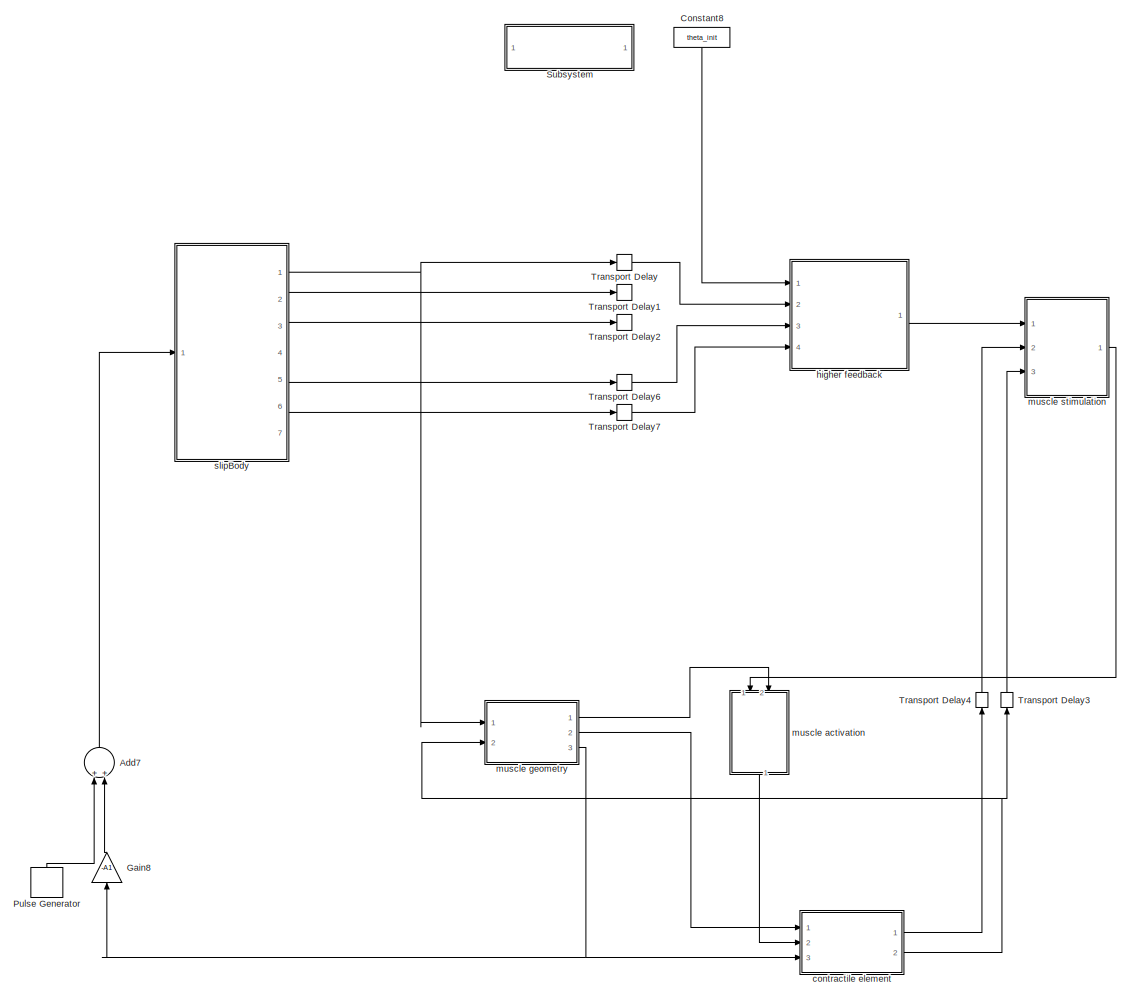
[diagram: root canvas - part 1/1, most of the canvas]
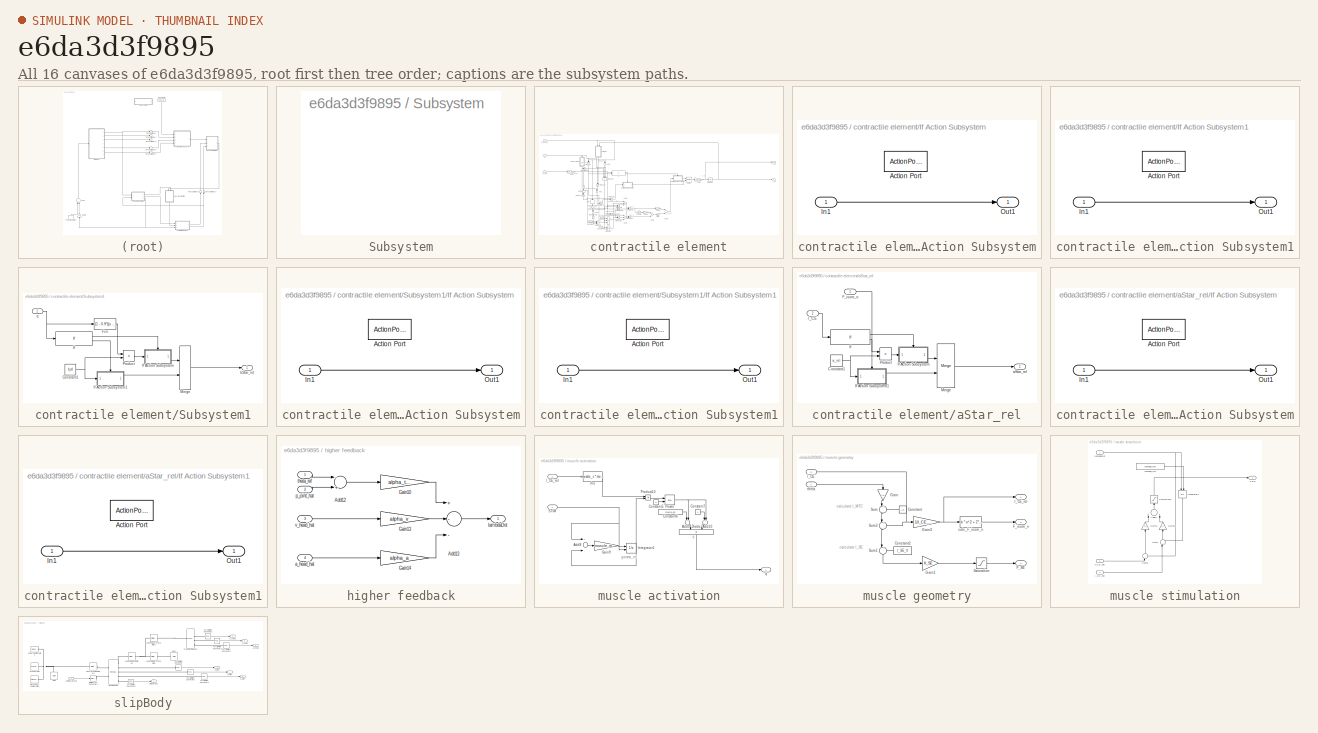
[diagram: thumbnail index - all 16 canvases of the model, root first then tree order]
MODEL slx_e6da3d3f9895
KIND model
CONFIG AbsTol = auto
CONFIG EnableMultiTasking = on
CONFIG FixedStep = auto
CONFIG MaxStep = 0.001
CONFIG MinStep = auto
CONFIG RelTol = 1e-3
CONFIG SampleTimeConstraint = Unconstrained
CONFIG Solver = ode15s
CONFIG SolverName = ode15s
CONFIG StartTime = 0.0
CONFIG StopTime = 5
BLOCK [Sum] Add7
  InputSameDT = off
  OutDataTypeStr = Inherit: Inherit via internal rule
  Ports = [2, 1]
  SaturateOnIntegerOverflow = off
BLOCK [Constant] Constant8
  Value = theta_init
BLOCK [Gain] Gain8
  Gain = -A1
  OutDataTypeStr = Inherit: Inherit via internal rule
  ParamDataTypeStr = Inherit: Inherit via internal rule
  SaturateOnIntegerOverflow = off
BLOCK [DiscretePulseGenerator] Pulse Generator
  Amplitude = -50
  Period = 100
  PhaseDelay = 0.1
  Ports = [0, 1]
  PulseType = Time based
  PulseWidth = 0.2
BLOCK [SubSystem] Subsystem
  OpenFcn = open_system('sm_lib')
  Ports = []
  RequestExecContextInheritance = off
  ShowPortLabels = none
BLOCK [TransportDelay] Transport Delay
  DelayTime = d_theta
  InitialOutput = theta_init
  Ports = [1, 1]
BLOCK [TransportDelay] Transport Delay1
  DelayTime = d_thetaDot
  Ports = [1, 1]
BLOCK [TransportDelay] Transport Delay2
  DelayTime = d_thetaTwoDot
  Ports = [1, 1]
BLOCK [TransportDelay] Transport Delay3
  DelayTime = d_l_CE
  InitialOutput = l_CE_init
  Ports = [1, 1]
BLOCK [TransportDelay] Transport Delay4
  DelayTime = d_v_CE
  Ports = [1, 1]
BLOCK [TransportDelay] Transport Delay6
  DelayTime = d_thetaDot
  Ports = [1, 1]
BLOCK [TransportDelay] Transport Delay7
  DelayTime = d_thetaTwoDot
  Ports = [1, 1]
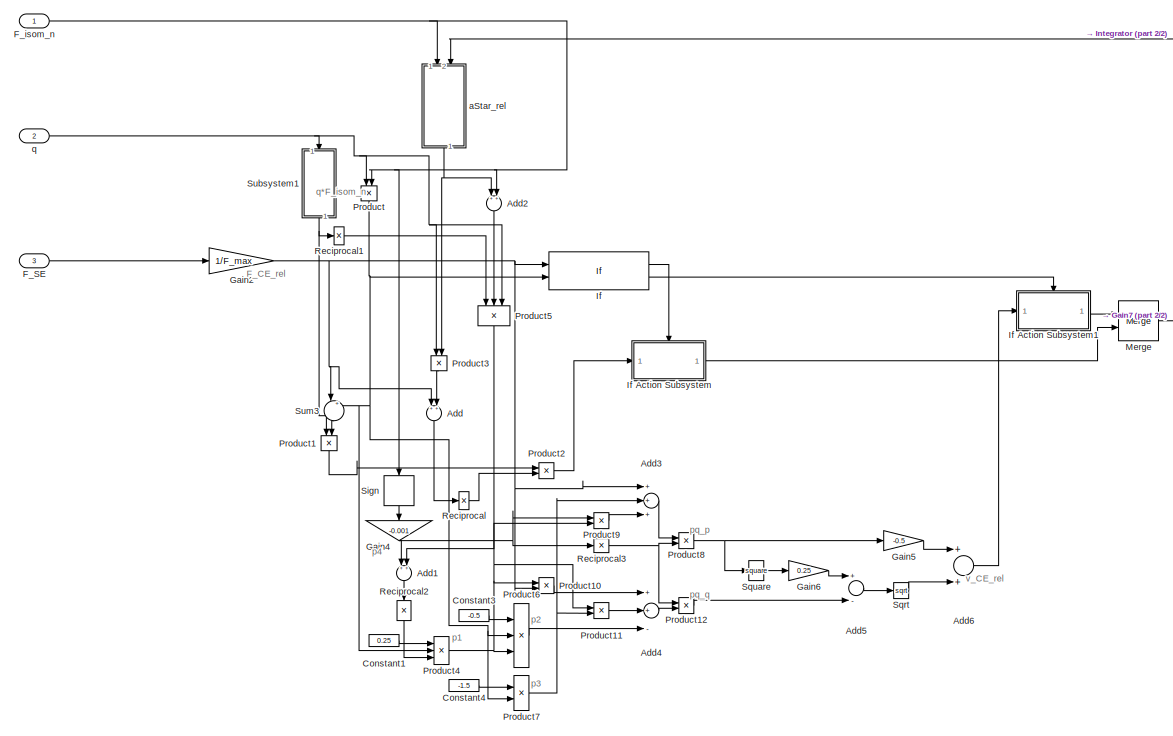
[diagram: contractile element - part 1/2, left side, full height]
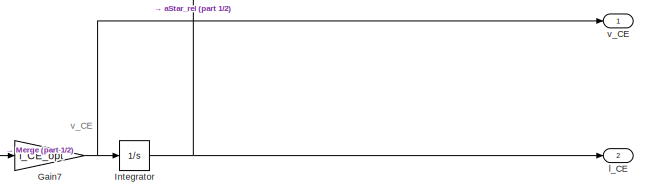
[diagram: contractile element - part 2/2, middle right region]
BLOCK [SubSystem] contractile element
  Ports = [3, 2]
  RequestExecContextInheritance = off
BLOCK [Sum] contractile element/Add
  InputSameDT = off
  OutDataTypeStr = Inherit: Inherit via internal rule
  Ports = [2, 1]
  SaturateOnIntegerOverflow = off
BLOCK [Sum] contractile element/Add1
  InputSameDT = off
  OutDataTypeStr = Inherit: Inherit via internal rule
  Ports = [2, 1]
  SaturateOnIntegerOverflow = off
BLOCK [Sum] contractile element/Add2
  InputSameDT = off
  OutDataTypeStr = Inherit: Inherit via internal rule
  Ports = [2, 1]
  SaturateOnIntegerOverflow = off
BLOCK [Sum] contractile element/Add3
  InputSameDT = off
  Inputs = +++
  OutDataTypeStr = Inherit: Inherit via internal rule
  Ports = [3, 1]
  SaturateOnIntegerOverflow = off
BLOCK [Sum] contractile element/Add4
  InputSameDT = off
  Inputs = ++-
  OutDataTypeStr = Inherit: Inherit via internal rule
  Ports = [3, 1]
  SaturateOnIntegerOverflow = off
BLOCK [Sum] contractile element/Add5
  InputSameDT = off
  Inputs = +-
  OutDataTypeStr = Inherit: Inherit via internal rule
  Ports = [2, 1]
  SaturateOnIntegerOverflow = off
BLOCK [Sum] contractile element/Add6
  InputSameDT = off
  OutDataTypeStr = Inherit: Inherit via internal rule
  Ports = [2, 1]
  SaturateOnIntegerOverflow = off
BLOCK [Constant] contractile element/Constant1
  Value = 0.25
BLOCK [Constant] contractile element/Constant3
  Value = -0.5
BLOCK [Constant] contractile element/Constant4
  Value = -1.5
BLOCK [Inport] contractile element/F_SE
  IconDisplay = Port number
  Port = 3
BLOCK [Inport] contractile element/F_isom_n
  IconDisplay = Port number
BLOCK [Gain] contractile element/Gain2
  Gain = 1/F_max
  OutDataTypeStr = Inherit: Inherit via internal rule
  ParamDataTypeStr = Inherit: Inherit via internal rule
  SaturateOnIntegerOverflow = off
BLOCK [Gain] contractile element/Gain4
  Gain = -0.001
  OutDataTypeStr = Inherit: Inherit via internal rule
  ParamDataTypeStr = Inherit: Inherit via internal rule
  SaturateOnIntegerOverflow = off
BLOCK [Gain] contractile element/Gain5
  Gain = -0.5
  OutDataTypeStr = Inherit: Inherit via internal rule
  ParamDataTypeStr = Inherit: Inherit via internal rule
  SaturateOnIntegerOverflow = off
BLOCK [Gain] contractile element/Gain6
  Gain = 0.25
  OutDataTypeStr = Inherit: Inherit via internal rule
  ParamDataTypeStr = Inherit: Inherit via internal rule
  SaturateOnIntegerOverflow = off
BLOCK [Gain] contractile element/Gain7
  Gain = l_CE_opt
  OutDataTypeStr = Inherit: Inherit via internal rule
  ParamDataTypeStr = Inherit: Inherit via internal rule
  SaturateOnIntegerOverflow = off
BLOCK [If] contractile element/If
  IfExpression = u1 < u2
  NumInputs = 2
  Ports = [2, 2]
BLOCK [SubSystem] contractile element/If Action Subsystem
  Ports = [1, 1, 0, 0, 0, 0, 0, 1]
  RequestExecContextInheritance = off
  TreatAsAtomicUnit = on
BLOCK [ActionPort] contractile element/If Action Subsystem/Action Port
  ActionType = then
BLOCK [Inport] contractile element/If Action Subsystem/In1
  IconDisplay = Port number
BLOCK [Outport] contractile element/If Action Subsystem/Out1
  IconDisplay = Port number
BLOCK [SubSystem] contractile element/If Action Subsystem1
  Ports = [1, 1, 0, 0, 0, 0, 0, 1]
  RequestExecContextInheritance = off
  TreatAsAtomicUnit = on
BLOCK [ActionPort] contractile element/If Action Subsystem1/Action Port
  ActionType = else
BLOCK [Inport] contractile element/If Action Subsystem1/In1
  IconDisplay = Port number
BLOCK [Outport] contractile element/If Action Subsystem1/Out1
  IconDisplay = Port number
BLOCK [Integrator] contractile element/Integrator
  InitialCondition = l_CE_init
  Ports = [1, 1]
BLOCK [Merge] contractile element/Merge
  Ports = [2, 1]
BLOCK [Product] contractile element/Product
  InputSameDT = off
  OutDataTypeStr = Inherit: Inherit via internal rule
  Ports = [2, 1]
  RndMeth = Floor
  SaturateOnIntegerOverflow = off
BLOCK [Product] contractile element/Product1
  InputSameDT = off
  OutDataTypeStr = Inherit: Inherit via internal rule
  Ports = [2, 1]
  RndMeth = Floor
  SaturateOnIntegerOverflow = off
BLOCK [Product] contractile element/Product10
  InputSameDT = off
  OutDataTypeStr = Inherit: Inherit via internal rule
  Ports = [2, 1]
  RndMeth = Floor
  SaturateOnIntegerOverflow = off
BLOCK [Product] contractile element/Product11
  InputSameDT = off
  OutDataTypeStr = Inherit: Inherit via internal rule
  Ports = [2, 1]
  RndMeth = Floor
  SaturateOnIntegerOverflow = off
BLOCK [Product] contractile element/Product12
  InputSameDT = off
  OutDataTypeStr = Inherit: Inherit via internal rule
  Ports = [2, 1]
  RndMeth = Floor
  SaturateOnIntegerOverflow = off
BLOCK [Product] contractile element/Product2
  InputSameDT = off
  OutDataTypeStr = Inherit: Inherit via internal rule
  Ports = [2, 1]
  RndMeth = Floor
  SaturateOnIntegerOverflow = off
BLOCK [Product] contractile element/Product3
  InputSameDT = off
  OutDataTypeStr = Inherit: Inherit via internal rule
  Ports = [2, 1]
  RndMeth = Floor
  SaturateOnIntegerOverflow = off
BLOCK [Product] contractile element/Product4
  InputSameDT = off
  Inputs = 3
  OutDataTypeStr = Inherit: Inherit via internal rule
  Ports = [3, 1]
  RndMeth = Floor
  SaturateOnIntegerOverflow = off
BLOCK [Product] contractile element/Product5
  InputSameDT = off
  Inputs = 3
  OutDataTypeStr = Inherit: Inherit via internal rule
  Ports = [3, 1]
  RndMeth = Floor
  SaturateOnIntegerOverflow = off
BLOCK [Product] contractile element/Product6
  InputSameDT = off
  Inputs = 3
  OutDataTypeStr = Inherit: Inherit via internal rule
  Ports = [3, 1]
  RndMeth = Floor
  SaturateOnIntegerOverflow = off
BLOCK [Product] contractile element/Product7
  InputSameDT = off
  OutDataTypeStr = Inherit: Inherit via internal rule
  Ports = [2, 1]
  RndMeth = Floor
  SaturateOnIntegerOverflow = off
BLOCK [Product] contractile element/Product8
  InputSameDT = off
  OutDataTypeStr = Inherit: Inherit via internal rule
  Ports = [2, 1]
  RndMeth = Floor
  SaturateOnIntegerOverflow = off
BLOCK [Product] contractile element/Product9
  InputSameDT = off
  OutDataTypeStr = Inherit: Inherit via internal rule
  Ports = [2, 1]
  RndMeth = Floor
  SaturateOnIntegerOverflow = off
BLOCK [Product] contractile element/Reciprocal
  InputSameDT = off
  Inputs = /
  OutDataTypeStr = Inherit: Inherit via internal rule
  Ports = [1, 1]
  RndMeth = Floor
  SaturateOnIntegerOverflow = off
BLOCK [Product] contractile element/Reciprocal1
  InputSameDT = off
  Inputs = /
  OutDataTypeStr = Inherit: Inherit via internal rule
  Ports = [1, 1]
  RndMeth = Floor
  SaturateOnIntegerOverflow = off
BLOCK [Product] contractile element/Reciprocal2
  InputSameDT = off
  Inputs = /
  OutDataTypeStr = Inherit: Inherit via internal rule
  Ports = [1, 1]
  RndMeth = Floor
  SaturateOnIntegerOverflow = off
BLOCK [Product] contractile element/Reciprocal3
  InputSameDT = off
  Inputs = /
  OutDataTypeStr = Inherit: Inherit via internal rule
  Ports = [1, 1]
  RndMeth = Floor
  SaturateOnIntegerOverflow = off
BLOCK [Signum] contractile element/Sign
BLOCK [Sqrt] contractile element/Sqrt
BLOCK [Math] contractile element/Square
  Operator = square
  Ports = [1, 1]
BLOCK [SubSystem] contractile element/Subsystem1
  Ports = [1, 1]
  RequestExecContextInheritance = off
BLOCK [Constant] contractile element/Subsystem1/Constant1
  Value = b_rel
BLOCK [Fcn] contractile element/Subsystem1/Fcn
  Expr = (1 - 0.9*((u - q_crit)*(q_0 - q_crit)^(-1)))^2
BLOCK [If] contractile element/Subsystem1/If
  IfExpression = u1 < q_crit
  Ports = [1, 2]
BLOCK [SubSystem] contractile element/Subsystem1/If Action Subsystem
  Ports = [1, 1, 0, 0, 0, 0, 0, 1]
  RequestExecContextInheritance = off
  TreatAsAtomicUnit = on
BLOCK [ActionPort] contractile element/Subsystem1/If Action Subsystem/Action Port
  ActionType = then
BLOCK [Inport] contractile element/Subsystem1/If Action Subsystem/In1
  IconDisplay = Port number
BLOCK [Outport] contractile element/Subsystem1/If Action Subsystem/Out1
  IconDisplay = Port number
BLOCK [SubSystem] contractile element/Subsystem1/If Action Subsystem1
  Ports = [1, 1, 0, 0, 0, 0, 0, 1]
  RequestExecContextInheritance = off
  TreatAsAtomicUnit = on
BLOCK [ActionPort] contractile element/Subsystem1/If Action Subsystem1/Action Port
  ActionType = else
BLOCK [Inport] contractile element/Subsystem1/If Action Subsystem1/In1
  IconDisplay = Port number
BLOCK [Outport] contractile element/Subsystem1/If Action Subsystem1/Out1
  IconDisplay = Port number
BLOCK [Merge] contractile element/Subsystem1/Merge
  Ports = [2, 1]
BLOCK [Product] contractile element/Subsystem1/Product
  InputSameDT = off
  OutDataTypeStr = Inherit: Inherit via internal rule
  Ports = [2, 1]
  RndMeth = Floor
  SaturateOnIntegerOverflow = off
BLOCK [Outport] contractile element/Subsystem1/bStar_rel
  IconDisplay = Port number
BLOCK [Inport] contractile element/Subsystem1/q
  IconDisplay = Port number
BLOCK [Sum] contractile element/Sum3
  IconShape = round
  InputSameDT = off
  Inputs = |+-
  OutDataTypeStr = Inherit: Inherit via internal rule
  Ports = [2, 1]
  SaturateOnIntegerOverflow = off
BLOCK [SubSystem] contractile element/aStar_rel
  Ports = [2, 1]
  RequestExecContextInheritance = off
BLOCK [Constant] contractile element/aStar_rel/Constant1
  Value = a_rel
BLOCK [Inport] contractile element/aStar_rel/F_isom_n
  IconDisplay = Port number
BLOCK [If] contractile element/aStar_rel/If
  IfExpression = u1 > l_CE_opt
  Ports = [1, 2]
BLOCK [SubSystem] contractile element/aStar_rel/If Action Subsystem
  Ports = [1, 1, 0, 0, 0, 0, 0, 1]
  RequestExecContextInheritance = off
  TreatAsAtomicUnit = on
BLOCK [ActionPort] contractile element/aStar_rel/If Action Subsystem/Action Port
  ActionType = then
BLOCK [Inport] contractile element/aStar_rel/If Action Subsystem/In1
  IconDisplay = Port number
BLOCK [Outport] contractile element/aStar_rel/If Action Subsystem/Out1
  IconDisplay = Port number
BLOCK [SubSystem] contractile element/aStar_rel/If Action Subsystem1
  Ports = [1, 1, 0, 0, 0, 0, 0, 1]
  RequestExecContextInheritance = off
  TreatAsAtomicUnit = on
BLOCK [ActionPort] contractile element/aStar_rel/If Action Subsystem1/Action Port
  ActionType = else
BLOCK [Inport] contractile element/aStar_rel/If Action Subsystem1/In1
  IconDisplay = Port number
BLOCK [Outport] contractile element/aStar_rel/If Action Subsystem1/Out1
  IconDisplay = Port number
BLOCK [Merge] contractile element/aStar_rel/Merge
  Ports = [2, 1]
BLOCK [Product] contractile element/aStar_rel/Product
  InputSameDT = off
  OutDataTypeStr = Inherit: Inherit via internal rule
  Ports = [2, 1]
  RndMeth = Floor
  SaturateOnIntegerOverflow = off
BLOCK [Outport] contractile element/aStar_rel/aStar_rel
  IconDisplay = Port number
BLOCK [Inport] contractile element/aStar_rel/l_CE
  IconDisplay = Port number
  Port = 2
BLOCK [Outport] contractile element/l_CE
  IconDisplay = Port number
  Port = 2
BLOCK [Inport] contractile element/q
  IconDisplay = Port number
  Port = 2
BLOCK [Outport] contractile element/v_CE
  IconDisplay = Port number
BLOCK [SubSystem] higher feedback
  Ports = [4, 1]
  RequestExecContextInheritance = off
BLOCK [Sum] higher feedback/Add12
  InputSameDT = off
  Inputs = -+
  OutDataTypeStr = Inherit: Inherit via internal rule
  Ports = [2, 1]
  SaturateOnIntegerOverflow = off
BLOCK [Sum] higher feedback/Add13
  InputSameDT = off
  Inputs = +--
  OutDataTypeStr = Inherit: Inherit via internal rule
  Ports = [3, 1]
  SaturateOnIntegerOverflow = off
BLOCK [Gain] higher feedback/Gain10
  Gain = alpha_theta
  OutDataTypeStr = Inherit: Inherit via internal rule
  ParamDataTypeStr = Inherit: Inherit via internal rule
  SaturateOnIntegerOverflow = off
BLOCK [Gain] higher feedback/Gain13
  Gain = alpha_v
  OutDataTypeStr = Inherit: Inherit via internal rule
  ParamDataTypeStr = Inherit: Inherit via internal rule
  SaturateOnIntegerOverflow = off
BLOCK [Gain] higher feedback/Gain14
  Gain = alpha_a
  OutDataTypeStr = Inherit: Inherit via internal rule
  ParamDataTypeStr = Inherit: Inherit via internal rule
  SaturateOnIntegerOverflow = off
BLOCK [Inport] higher feedback/a_head_hat
  IconDisplay = Port number
  Port = 4
BLOCK [Outport] higher feedback/lambdaDot
  IconDisplay = Port number
BLOCK [Inport] higher feedback/p_joint_hat
  IconDisplay = Port number
  Port = 2
BLOCK [Inport] higher feedback/theta_ref
  IconDisplay = Port number
BLOCK [Inport] higher feedback/v_head_hat
  IconDisplay = Port number
  Port = 3
BLOCK [SubSystem] muscle activation
  Ports = [2, 1]
  RequestExecContextInheritance = off
BLOCK [Sum] muscle activation/Add10
  InputSameDT = off
  OutDataTypeStr = Inherit: Inherit via internal rule
  Ports = [2, 1]
  SaturateOnIntegerOverflow = off
BLOCK [Sum] muscle activation/Add8
  InputSameDT = off
  Inputs = +-
  OutDataTypeStr = Inherit: Inherit via internal rule
  Ports = [2, 1]
  SaturateOnIntegerOverflow = off
BLOCK [Sum] muscle activation/Add9
  InputSameDT = off
  OutDataTypeStr = Inherit: Inherit via internal rule
  Ports = [2, 1]
  SaturateOnIntegerOverflow = off
BLOCK [Constant] muscle activation/Constant5
  Value = 3
BLOCK [Constant] muscle activation/Constant6
  Value = muscle_q0
BLOCK [Constant] muscle activation/Constant7
BLOCK [Product] muscle activation/Divide
  InputSameDT = off
  Inputs = */
  OutDataTypeStr = Inherit: Inherit via internal rule
  Ports = [2, 1]
  RndMeth = Floor
  SaturateOnIntegerOverflow = off
BLOCK [Gain] muscle activation/Gain9
  Gain = muscle_m
  OutDataTypeStr = Inherit: Inherit via internal rule
  ParamDataTypeStr = Inherit: Inherit via internal rule
  SaturateOnIntegerOverflow = off
BLOCK [Integrator] muscle activation/Integrator1
  InitialCondition = 0.038159574513235
  InitialConditionSource = external
  Ports = [2, 1]
BLOCK [Math] muscle activation/Power
  Operator = pow
  Ports = [2, 1]
BLOCK [Product] muscle activation/Product13
  InputSameDT = off
  OutDataTypeStr = Inherit: Inherit via internal rule
  Ports = [2, 1]
  RndMeth = Floor
  SaturateOnIntegerOverflow = off
BLOCK [Inport] muscle activation/STIM
  IconDisplay = Port number
BLOCK [Inport] muscle activation/l_CE_rel
  IconDisplay = Port number
  Port = 2
BLOCK [Outport] muscle activation/q
  IconDisplay = Port number
BLOCK [Fcn] muscle activation/rho
  Expr = muscle_c * muscle_eta * (muscle_k - 1) / (muscle_k - u) * u
BLOCK [SubSystem] muscle geometry
  Ports = [2, 3]
  RequestExecContextInheritance = off
BLOCK [Constant] muscle geometry/Constant
  Value = A0
BLOCK [Constant] muscle geometry/Constant2
  Value = l_SE_0
BLOCK [Outport] muscle geometry/F_SE
  IconDisplay = Port number
  Port = 3
BLOCK [Outport] muscle geometry/F_isom_n
  IconDisplay = Port number
  Port = 2
BLOCK [Gain] muscle geometry/Gain
  Gain = A1
  OutDataTypeStr = Inherit: Inherit via internal rule
  ParamDataTypeStr = Inherit: Inherit via internal rule
  SaturateOnIntegerOverflow = off
BLOCK [Gain] muscle geometry/Gain1
  Gain = K_SE
  OutDataTypeStr = Inherit: Inherit via internal rule
  ParamDataTypeStr = Inherit: Inherit via internal rule
  SaturateOnIntegerOverflow = off
BLOCK [Gain] muscle geometry/Gain3
  Gain = 1/l_CE_opt
  OutDataTypeStr = Inherit: Inherit via internal rule
  ParamDataTypeStr = Inherit: Inherit via internal rule
  SaturateOnIntegerOverflow = off
BLOCK [Saturate] muscle geometry/Saturation
  InputPortMap = u0
  LowerLimit = 0
  Ports = [1, 1]
  UpperLimit = inf
BLOCK [Sum] muscle geometry/Sum
  IconShape = round
  InputSameDT = off
  Inputs = |++
  OutDataTypeStr = Inherit: Inherit via internal rule
  Ports = [2, 1]
  SaturateOnIntegerOverflow = off
BLOCK [Sum] muscle geometry/Sum1
  IconShape = round
  InputSameDT = off
  Inputs = |+-
  OutDataTypeStr = Inherit: Inherit via internal rule
  Ports = [2, 1]
  SaturateOnIntegerOverflow = off
BLOCK [Sum] muscle geometry/Sum2
  IconShape = round
  InputSameDT = off
  Inputs = |+-
  OutDataTypeStr = Inherit: Inherit via internal rule
  Ports = [2, 1]
  SaturateOnIntegerOverflow = off
BLOCK [Fcn] muscle geometry/calc_F_isom_n
  Expr = -a * u^2 + 2*a*u - a + 1
BLOCK [Inport] muscle geometry/l_CE
  IconDisplay = Port number
  Port = 2
BLOCK [Outport] muscle geometry/l_CE_rel
  IconDisplay = Port number
BLOCK [Inport] muscle geometry/theta
  IconDisplay = Port number
BLOCK [SubSystem] muscle stimulation
  Ports = [3, 1]
  RequestExecContextInheritance = off
BLOCK [Sum] muscle stimulation/Add11
  InputSameDT = off
  OutDataTypeStr = Inherit: Inherit via internal rule
  Ports = [2, 1]
  SaturateOnIntegerOverflow = off
BLOCK [Gain] muscle stimulation/Gain11
  Gain = K_v
  OutDataTypeStr = Inherit: Inherit via internal rule
  ParamDataTypeStr = Inherit: Inherit via internal rule
  SaturateOnIntegerOverflow = off
BLOCK [Gain] muscle stimulation/Gain12
  Gain = K_l
  OutDataTypeStr = Inherit: Inherit via internal rule
  ParamDataTypeStr = Inherit: Inherit via internal rule
  SaturateOnIntegerOverflow = off
BLOCK [Integrator] muscle stimulation/Integrator2
  InitialCondition = 0.038159574513235
  InitialConditionSource = external
  Ports = [2, 1]
BLOCK [Outport] muscle stimulation/STIM
  IconDisplay = Port number
BLOCK [Saturate] muscle stimulation/Saturation1
  InputPortMap = u0
  LowerLimit = 0
  Ports = [1, 1]
  UpperLimit = 1
BLOCK [Sum] muscle stimulation/Sum4
  IconShape = round
  InputSameDT = off
  Inputs = |+-
  OutDataTypeStr = Inherit: Inherit via internal rule
  Ports = [2, 1]
  SaturateOnIntegerOverflow = off
BLOCK [Sum] muscle stimulation/Sum5
  IconShape = round
  InputSameDT = off
  Inputs = |+-
  OutDataTypeStr = Inherit: Inherit via internal rule
  Ports = [2, 1]
  SaturateOnIntegerOverflow = off
BLOCK [Inport] muscle stimulation/l_CE_hat
  IconDisplay = Port number
  Port = 3
BLOCK [Inport] muscle stimulation/lambdaDot
  IconDisplay = Port number
BLOCK [Constant] muscle stimulation/lambda_init
  Value = lambda_init
BLOCK [Inport] muscle stimulation/v_CE_hat
  IconDisplay = Port number
  Port = 2
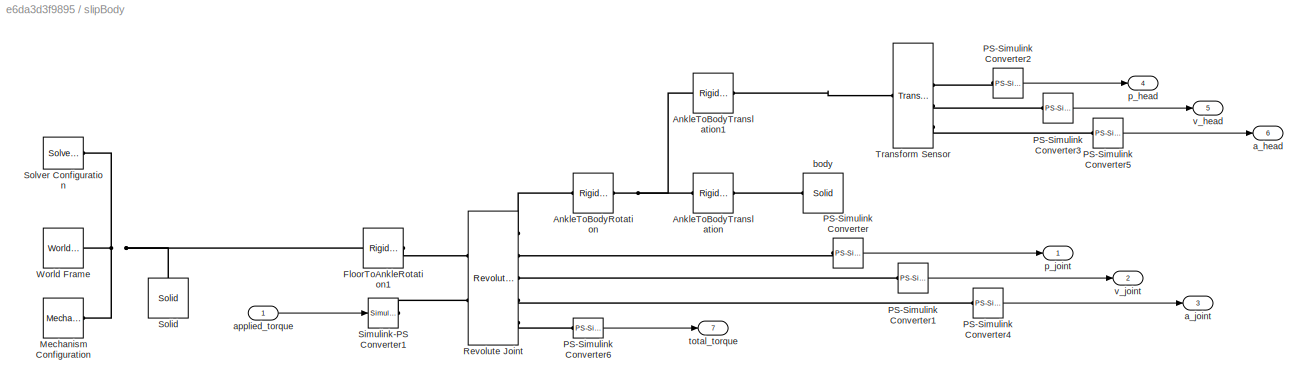
BLOCK [SubSystem] slipBody
  Ports = [1, 7]
  RequestExecContextInheritance = off
  TreatAsAtomicUnit = on
BLOCK [Reference] slipBody/AnkleToBodyRotation  REF=sm_lib/Frames and
Transforms/Rigid
Transform
  Ports = [0, 0, 0, 0, 0, 1, 1]
  SourceBlock = sm_lib/Frames and\nTransforms/Rigid\nTransform
  SourceProductBaseCode = MS
  SourceProductName = Simscape Multibody
  SourceType = Rigid\nTransform
BLOCK [Reference] slipBody/AnkleToBodyTranslation  REF=sm_lib/Frames and
Transforms/Rigid
Transform
  Ports = [0, 0, 0, 0, 0, 1, 1]
  SourceBlock = sm_lib/Frames and\nTransforms/Rigid\nTransform
  SourceProductBaseCode = MS
  SourceProductName = Simscape Multibody
  SourceType = Rigid\nTransform
BLOCK [Reference] slipBody/AnkleToBodyTranslation1  REF=sm_lib/Frames and
Transforms/Rigid
Transform
  Ports = [0, 0, 0, 0, 0, 1, 1]
  SourceBlock = sm_lib/Frames and\nTransforms/Rigid\nTransform
  SourceProductBaseCode = MS
  SourceProductName = Simscape Multibody
  SourceType = Rigid\nTransform
BLOCK [Reference] slipBody/FloorToAnkleRotation1  REF=sm_lib/Frames and
Transforms/Rigid
Transform
  Ports = [0, 0, 0, 0, 0, 1, 1]
  SourceBlock = sm_lib/Frames and\nTransforms/Rigid\nTransform
  SourceProductBaseCode = MS
  SourceProductName = Simscape Multibody
  SourceType = Rigid\nTransform
BLOCK [Reference] slipBody/Mechanism Configuration  REF=sm_lib/Utilities/Mechanism
Configuration
  Ports = [0, 0, 0, 0, 0, 0, 1]
  SourceBlock = sm_lib/Utilities/Mechanism\nConfiguration
  SourceProductBaseCode = MS
  SourceProductName = Simscape Multibody
  SourceType = Mechanism\nConfiguration
BLOCK [Reference] slipBody/PS-Simulink Converter  REF=nesl_utility/PS-Simulink
Converter
  Ports = [0, 1, 0, 0, 0, 1]
  SourceBlock = nesl_utility/PS-Simulink\nConverter
  SourceProductBaseCode = SS
  SourceProductName = Simscape
  SourceType = PS-Simulink\nConverter
BLOCK [Reference] slipBody/PS-Simulink Converter1  REF=nesl_utility/PS-Simulink
Converter
  Ports = [0, 1, 0, 0, 0, 1]
  SourceBlock = nesl_utility/PS-Simulink\nConverter
  SourceProductBaseCode = SS
  SourceProductName = Simscape
  SourceType = PS-Simulink\nConverter
BLOCK [Reference] slipBody/PS-Simulink Converter2  REF=nesl_utility/PS-Simulink
Converter
  Ports = [0, 1, 0, 0, 0, 1]
  SourceBlock = nesl_utility/PS-Simulink\nConverter
  SourceProductBaseCode = SS
  SourceProductName = Simscape
  SourceType = PS-Simulink\nConverter
BLOCK [Reference] slipBody/PS-Simulink Converter3  REF=nesl_utility/PS-Simulink
Converter
  Ports = [0, 1, 0, 0, 0, 1]
  SourceBlock = nesl_utility/PS-Simulink\nConverter
  SourceProductBaseCode = SS
  SourceProductName = Simscape
  SourceType = PS-Simulink\nConverter
BLOCK [Reference] slipBody/PS-Simulink Converter4  REF=nesl_utility/PS-Simulink
Converter
  Ports = [0, 1, 0, 0, 0, 1]
  SourceBlock = nesl_utility/PS-Simulink\nConverter
  SourceProductBaseCode = SS
  SourceProductName = Simscape
  SourceType = PS-Simulink\nConverter
BLOCK [Reference] slipBody/PS-Simulink Converter5  REF=nesl_utility/PS-Simulink
Converter
  Ports = [0, 1, 0, 0, 0, 1]
  SourceBlock = nesl_utility/PS-Simulink\nConverter
  SourceProductBaseCode = SS
  SourceProductName = Simscape
  SourceType = PS-Simulink\nConverter
BLOCK [Reference] slipBody/PS-Simulink Converter6  REF=nesl_utility/PS-Simulink
Converter
  Ports = [0, 1, 0, 0, 0, 1]
  SourceBlock = nesl_utility/PS-Simulink\nConverter
  SourceProductBaseCode = SS
  SourceProductName = Simscape
  SourceType = PS-Simulink\nConverter
BLOCK [Reference] slipBody/Revolute Joint  REF=sm_lib/Joints/Revolute Joint
  Ports = [0, 0, 0, 0, 0, 2, 5]
  SourceBlock = sm_lib/Joints/Revolute Joint
  SourceProductBaseCode = MS
  SourceProductName = Simscape Multibody
  SourceType = Revolute Joint
BLOCK [Reference] slipBody/Simulink-PS Converter1  REF=nesl_utility/Simulink-PS
Converter
  Ports = [1, 0, 0, 0, 0, 0, 1]
  SourceBlock = nesl_utility/Simulink-PS\nConverter
  SourceProductBaseCode = SS
  SourceProductName = Simscape
  SourceType = Simulink-PS\nConverter
BLOCK [Reference] slipBody/Solid  REF=sm_lib/Body Elements/Solid
  Ports = [0, 0, 0, 0, 0, 0, 1]
  SourceBlock = sm_lib/Body Elements/Solid
  SourceProductBaseCode = MS
  SourceProductName = Simscape Multibody
  SourceType = Solid
BLOCK [Reference] slipBody/Solver Configuration  REF=nesl_utility/Solver
Configuration
  Ports = [0, 0, 0, 0, 0, 0, 1]
  SourceBlock = nesl_utility/Solver\nConfiguration
  SourceProductBaseCode = SS
  SourceProductName = Simscape
  SourceType = Solver\nConfiguration
BLOCK [Reference] slipBody/Transform Sensor  REF=sm_lib/Frames and
Transforms/Transform
Sensor
  Ports = [0, 0, 0, 0, 0, 1, 4]
  SourceBlock = sm_lib/Frames and\nTransforms/Transform\nSensor
  SourceProductBaseCode = MS
  SourceProductName = Simscape Multibody
  SourceType = Transform\nSensor
BLOCK [Reference] slipBody/World Frame  REF=sm_lib/Frames and
Transforms/World Frame
  Ports = [0, 0, 0, 0, 0, 0, 1]
  SourceBlock = sm_lib/Frames and\nTransforms/World Frame
  SourceProductBaseCode = MS
  SourceProductName = Simscape Multibody
  SourceType = World Frame
BLOCK [Outport] slipBody/a_head
  IconDisplay = Port number
  Port = 6
BLOCK [Outport] slipBody/a_joint
  IconDisplay = Port number
  Port = 3
BLOCK [Inport] slipBody/applied_torque
  IconDisplay = Port number
BLOCK [Reference] slipBody/body  REF=sm_lib/Body Elements/Solid
  Ports = [0, 0, 0, 0, 0, 0, 1]
  SourceBlock = sm_lib/Body Elements/Solid
  SourceProductBaseCode = MS
  SourceProductName = Simscape Multibody
  SourceType = Solid
BLOCK [Outport] slipBody/p_head
  IconDisplay = Port number
  Port = 4
BLOCK [Outport] slipBody/p_joint
  IconDisplay = Port number
BLOCK [Outport] slipBody/total_torque
  IconDisplay = Port number
  Port = 7
BLOCK [Outport] slipBody/v_head
  IconDisplay = Port number
  Port = 5
BLOCK [Outport] slipBody/v_joint
  IconDisplay = Port number
  Port = 2
ANNOTATION contractile element: F_CE_rel
ANNOTATION contractile element: p1
ANNOTATION contractile element: p2
ANNOTATION contractile element: p3
ANNOTATION contractile element: p4
ANNOTATION contractile element: pq_p
ANNOTATION contractile element: pq_q
ANNOTATION contractile element: q*F_isom_n
ANNOTATION contractile element: v_CE
ANNOTATION contractile element: v_CE_rel
ANNOTATION muscle activation: gamma_rel
ANNOTATION muscle activation: q
ANNOTATION muscle geometry: calculate l_MTC
ANNOTATION muscle geometry: calculate l_SE
LINE Add7:1 -> slipBody:1
LINE Constant8:1 -> higher feedback:1
LINE Gain8:1 -> Add7:2
LINE Pulse Generator:1 -> Add7:1
LINE Transport Delay3:1 -> muscle stimulation:3
LINE Transport Delay4:1 -> muscle stimulation:2
LINE Transport Delay6:1 -> higher feedback:3
LINE Transport Delay7:1 -> higher feedback:4
LINE Transport Delay:1 -> higher feedback:2
LINE contractile element/Add1:1 -> contractile element/Reciprocal2:1
LINE contractile element/Add2:1 -> contractile element/Product5:2
LINE contractile element/Add3:1 -> contractile element/Product8:1
LINE contractile element/Add4:1 -> contractile element/Product12:2
LINE contractile element/Add5:1 -> contractile element/Sqrt:1
LINE contractile element/Add6:1 -> contractile element/If Action Subsystem1:1
LINE contractile element/Add:1 -> contractile element/Reciprocal:1
LINE contractile element/Constant1:1 -> contractile element/Product4:1
LINE contractile element/Constant3:1 -> contractile element/Product6:1
LINE contractile element/Constant4:1 -> contractile element/Product7:1
LINE contractile element/F_SE:1 -> contractile element/Gain2:1
NET contractile element/F_isom_n:1 -> contractile element/Add2:2, contractile element/Product:2, contractile element/Sign:1, contractile element/aStar_rel:1
NET contractile element/Gain2:1 -> contractile element/Add3:1, contractile element/Add:1, contractile element/If:1, contractile element/Product10:2, contractile element/Sum3:1
NET contractile element/Gain4:1 -> contractile element/Add1:1, contractile element/Product9:1, contractile element/Reciprocal3:1
LINE contractile element/Gain5:1 -> contractile element/Add6:1
LINE contractile element/Gain6:1 -> contractile element/Add5:1
NET contractile element/Gain7:1 -> contractile element/Integrator:1, contractile element/v_CE:1
LINE contractile element/If Action Subsystem/In1:1 -> contractile element/If Action Subsystem/Out1:1
LINE contractile element/If Action Subsystem1/In1:1 -> contractile element/If Action Subsystem1/Out1:1
LINE contractile element/If Action Subsystem1:1 -> contractile element/Merge:1
LINE contractile element/If Action Subsystem:1 -> contractile element/Merge:2
LINE contractile element/If:1 -> contractile element/If Action Subsystem:ifaction
LINE contractile element/If:2 -> contractile element/If Action Subsystem1:ifaction
NET contractile element/Integrator:1 -> contractile element/aStar_rel:2, contractile element/l_CE:1
LINE contractile element/Merge:1 -> contractile element/Gain7:1
LINE contractile element/Product10:1 -> contractile element/Add4:1
LINE contractile element/Product11:1 -> contractile element/Add4:2
LINE contractile element/Product12:1 -> contractile element/Add5:2
LINE contractile element/Product1:1 -> contractile element/Product2:1
LINE contractile element/Product2:1 -> contractile element/If Action Subsystem:1
LINE contractile element/Product3:1 -> contractile element/Add:2
NET contractile element/Product4:1 -> contractile element/Product10:1, contractile element/Product11:1, contractile element/Product6:3, contractile element/Product9:2
LINE contractile element/Product5:1 -> contractile element/Add1:2
LINE contractile element/Product6:1 -> contractile element/Add4:3
NET contractile element/Product7:1 -> contractile element/Add3:2, contractile element/Product11:2
NET contractile element/Product8:1 -> contractile element/Gain5:1, contractile element/Square:1
LINE contractile element/Product9:1 -> contractile element/Add3:3
NET contractile element/Product:1 -> contractile element/If:2, contractile element/Product4:2, contractile element/Product6:2, contractile element/Product7:2, contractile element/Sum3:2
LINE contractile element/Reciprocal1:1 -> contractile element/Product5:1
LINE contractile element/Reciprocal2:1 -> contractile element/Product4:3
NET contractile element/Reciprocal3:1 -> contractile element/Product12:1, contractile element/Product8:2
LINE contractile element/Reciprocal:1 -> contractile element/Product2:2
LINE contractile element/Sign:1 -> contractile element/Gain4:1
LINE contractile element/Sqrt:1 -> contractile element/Add6:2
LINE contractile element/Square:1 -> contractile element/Gain6:1
NET contractile element/Subsystem1/Constant1:1 -> contractile element/Subsystem1/If Action Subsystem1:1, contractile element/Subsystem1/Product:2
LINE contractile element/Subsystem1/Fcn:1 -> contractile element/Subsystem1/Product:1
LINE contractile element/Subsystem1/If Action Subsystem/In1:1 -> contractile element/Subsystem1/If Action Subsystem/Out1:1
LINE contractile element/Subsystem1/If Action Subsystem1/In1:1 -> contractile element/Subsystem1/If Action Subsystem1/Out1:1
LINE contractile element/Subsystem1/If Action Subsystem1:1 -> contractile element/Subsystem1/Merge:2
LINE contractile element/Subsystem1/If Action Subsystem:1 -> contractile element/Subsystem1/Merge:1
LINE contractile element/Subsystem1/If:1 -> contractile element/Subsystem1/If Action Subsystem:ifaction
LINE contractile element/Subsystem1/If:2 -> contractile element/Subsystem1/If Action Subsystem1:ifaction
LINE contractile element/Subsystem1/Merge:1 -> contractile element/Subsystem1/bStar_rel:1
LINE contractile element/Subsystem1/Product:1 -> contractile element/Subsystem1/If Action Subsystem:1
NET contractile element/Subsystem1/q:1 -> contractile element/Subsystem1/Fcn:1, contractile element/Subsystem1/If:1
NET contractile element/Subsystem1:1 -> contractile element/Product1:1, contractile element/Reciprocal1:1
LINE contractile element/Sum3:1 -> contractile element/Product1:2
NET contractile element/aStar_rel/Constant1:1 -> contractile element/aStar_rel/If Action Subsystem1:1, contractile element/aStar_rel/Product:2
LINE contractile element/aStar_rel/F_isom_n:1 -> contractile element/aStar_rel/Product:1
LINE contractile element/aStar_rel/If Action Subsystem/In1:1 -> contractile element/aStar_rel/If Action Subsystem/Out1:1
LINE contractile element/aStar_rel/If Action Subsystem1/In1:1 -> contractile element/aStar_rel/If Action Subsystem1/Out1:1
LINE contractile element/aStar_rel/If Action Subsystem1:1 -> contractile element/aStar_rel/Merge:2
LINE contractile element/aStar_rel/If Action Subsystem:1 -> contractile element/aStar_rel/Merge:1
LINE contractile element/aStar_rel/If:1 -> contractile element/aStar_rel/If Action Subsystem:ifaction
LINE contractile element/aStar_rel/If:2 -> contractile element/aStar_rel/If Action Subsystem1:ifaction
LINE contractile element/aStar_rel/Merge:1 -> contractile element/aStar_rel/aStar_rel:1
LINE contractile element/aStar_rel/Product:1 -> contractile element/aStar_rel/If Action Subsystem:1
LINE contractile element/aStar_rel/l_CE:1 -> contractile element/aStar_rel/If:1
NET contractile element/aStar_rel:1 -> contractile element/Add2:1, contractile element/Product3:2
NET contractile element/q:1 -> contractile element/Product3:1, contractile element/Product5:3, contractile element/Product:1, contractile element/Subsystem1:1
LINE contractile element:1 -> Transport Delay4:1
NET contractile element:2 -> Transport Delay3:1, muscle geometry:2
LINE higher feedback/Add12:1 -> higher feedback/Gain10:1
LINE higher feedback/Add13:1 -> higher feedback/lambdaDot:1
LINE higher feedback/Gain10:1 -> higher feedback/Add13:1
LINE higher feedback/Gain13:1 -> higher feedback/Add13:2
LINE higher feedback/Gain14:1 -> higher feedback/Add13:3
LINE higher feedback/a_head_hat:1 -> higher feedback/Gain14:1
LINE higher feedback/p_joint_hat:1 -> higher feedback/Add12:2
LINE higher feedback/theta_ref:1 -> higher feedback/Add12:1
LINE higher feedback/v_head_hat:1 -> higher feedback/Gain13:1
LINE higher feedback:1 -> muscle stimulation:1
LINE muscle activation/Add10:1 -> muscle activation/Divide:2
LINE muscle activation/Add8:1 -> muscle activation/Gain9:1
LINE muscle activation/Add9:1 -> muscle activation/Divide:1
LINE muscle activation/Constant5:1 -> muscle activation/Power:2
LINE muscle activation/Constant6:1 -> muscle activation/Add9:1
LINE muscle activation/Constant7:1 -> muscle activation/Add10:1
LINE muscle activation/Divide:1 -> muscle activation/q:1
LINE muscle activation/Gain9:1 -> muscle activation/Integrator1:1
NET muscle activation/Integrator1:1 -> muscle activation/Add8:2, muscle activation/Product13:2
NET muscle activation/Power:1 -> muscle activation/Add10:2, muscle activation/Add9:2
LINE muscle activation/Product13:1 -> muscle activation/Power:1
NET muscle activation/STIM:1 -> muscle activation/Add8:1, muscle activation/Integrator1:2
LINE muscle activation/l_CE_rel:1 -> muscle activation/rho:1
LINE muscle activation/rho:1 -> muscle activation/Product13:1
LINE muscle activation:1 -> contractile element:2
LINE muscle geometry/Constant2:1 -> muscle geometry/Sum1:2
LINE muscle geometry/Constant:1 -> muscle geometry/Sum:2
LINE muscle geometry/Gain1:1 -> muscle geometry/Saturation:1
NET muscle geometry/Gain3:1 -> muscle geometry/calc_F_isom_n:1, muscle geometry/l_CE_rel:1
LINE muscle geometry/Gain:1 -> muscle geometry/Sum:1
LINE muscle geometry/Saturation:1 -> muscle geometry/F_SE:1
LINE muscle geometry/Sum1:1 -> muscle geometry/Gain1:1
LINE muscle geometry/Sum2:1 -> muscle geometry/Sum1:1
LINE muscle geometry/Sum:1 -> muscle geometry/Sum2:1
LINE muscle geometry/calc_F_isom_n:1 -> muscle geometry/F_isom_n:1
NET muscle geometry/l_CE:1 -> muscle geometry/Gain3:1, muscle geometry/Sum2:2
LINE muscle geometry/theta:1 -> muscle geometry/Gain:1
LINE muscle geometry:1 -> muscle activation:2
LINE muscle geometry:2 -> contractile element:1
NET muscle geometry:3 -> Gain8:1, contractile element:3
LINE muscle stimulation/Add11:1 -> muscle stimulation/Saturation1:1
LINE muscle stimulation/Gain11:1 -> muscle stimulation/Add11:1
LINE muscle stimulation/Gain12:1 -> muscle stimulation/Add11:2
LINE muscle stimulation/Integrator2:1 -> muscle stimulation/Sum4:2
LINE muscle stimulation/Saturation1:1 -> muscle stimulation/STIM:1
LINE muscle stimulation/Sum4:1 -> muscle stimulation/Gain12:1
LINE muscle stimulation/Sum5:1 -> muscle stimulation/Gain11:1
LINE muscle stimulation/l_CE_hat:1 -> muscle stimulation/Sum4:1
NET muscle stimulation/lambdaDot:1 -> muscle stimulation/Integrator2:1, muscle stimulation/Sum5:2
LINE muscle stimulation/lambda_init:1 -> muscle stimulation/Integrator2:2
LINE muscle stimulation/v_CE_hat:1 -> muscle stimulation/Sum5:1
LINE muscle stimulation:1 -> muscle activation:1
LINE slipBody/PS-Simulink Converter1:1 -> slipBody/v_joint:1
LINE slipBody/PS-Simulink Converter2:1 -> slipBody/p_head:1
LINE slipBody/PS-Simulink Converter3:1 -> slipBody/v_head:1
LINE slipBody/PS-Simulink Converter4:1 -> slipBody/a_joint:1
LINE slipBody/PS-Simulink Converter5:1 -> slipBody/a_head:1
LINE slipBody/PS-Simulink Converter6:1 -> slipBody/total_torque:1
LINE slipBody/PS-Simulink Converter:1 -> slipBody/p_joint:1
LINE slipBody/applied_torque:1 -> slipBody/Simulink-PS Converter1:1
NET slipBody:1 -> Transport Delay:1, muscle geometry:1
LINE slipBody:2 -> Transport Delay1:1
LINE slipBody:3 -> Transport Delay2:1
LINE slipBody:5 -> Transport Delay6:1
LINE slipBody:6 -> Transport Delay7:1
PLINE slipBody/AnkleToBodyRotation:LConn1 -- slipBody/Revolute Joint:RConn1
PNET net1: slipBody/AnkleToBodyRotation:RConn1 -- slipBody/AnkleToBodyTranslation1:LConn1 -- slipBody/AnkleToBodyTranslation:LConn1
PLINE slipBody/AnkleToBodyTranslation1:RConn1 -- slipBody/Transform Sensor:LConn1
PLINE slipBody/AnkleToBodyTranslation:RConn1 -- slipBody/body:RConn1
PNET net2: slipBody/FloorToAnkleRotation1:LConn1 -- slipBody/Mechanism Configuration:RConn1 -- slipBody/Solid:RConn1 -- slipBody/Solver Configuration:RConn1 -- slipBody/World Frame:RConn1
PLINE slipBody/FloorToAnkleRotation1:RConn1 -- slipBody/Revolute Joint:LConn1
PLINE slipBody/PS-Simulink Converter1:LConn1 -- slipBody/Revolute Joint:RConn3
PLINE slipBody/PS-Simulink Converter2:LConn1 -- slipBody/Transform Sensor:RConn2
PLINE slipBody/PS-Simulink Converter3:LConn1 -- slipBody/Transform Sensor:RConn3
PLINE slipBody/PS-Simulink Converter4:LConn1 -- slipBody/Revolute Joint:RConn4
PLINE slipBody/PS-Simulink Converter5:LConn1 -- slipBody/Transform Sensor:RConn4
PLINE slipBody/PS-Simulink Converter6:LConn1 -- slipBody/Revolute Joint:RConn5
PLINE slipBody/PS-Simulink Converter:LConn1 -- slipBody/Revolute Joint:RConn2
PLINE slipBody/Revolute Joint:LConn2 -- slipBody/Simulink-PS Converter1:RConn1
note: NET lines group one-source signal fan-out (src -> all destinations, sorted); 1:1 wires keep LINE; PNET lines group multi-terminal physical nets as a canonical sorted terminal list (undirected conserving connections); 2-terminal nets keep the pairwise PLINE form
